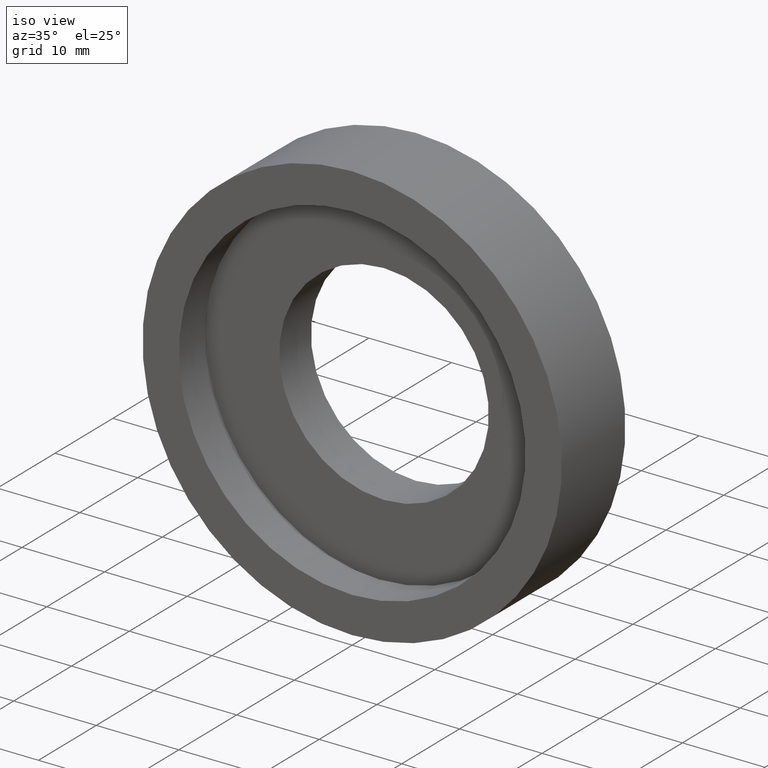
[diagram: clean part render]
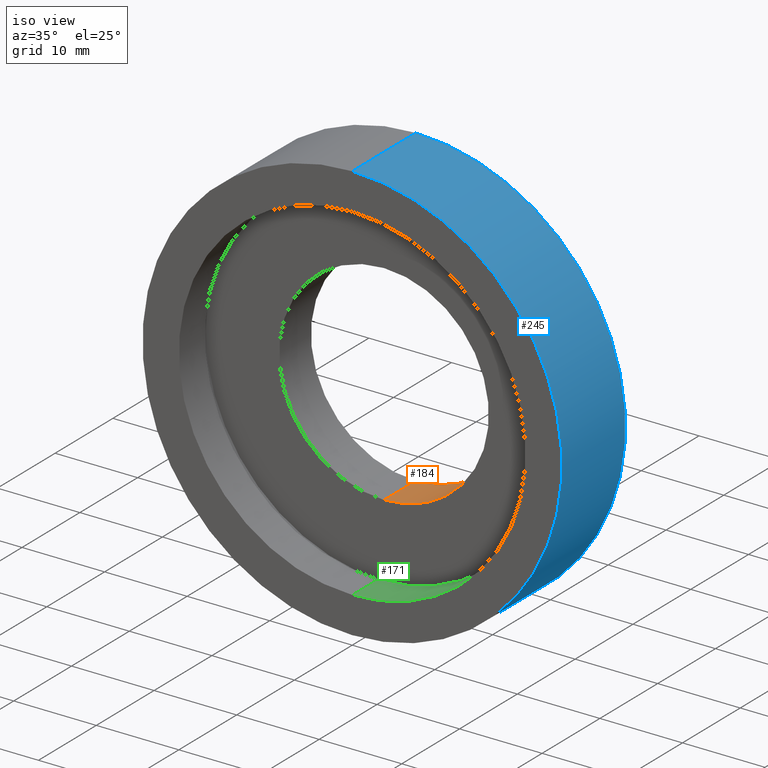
[diagram: same view with three faces highlighted in distinct colors, each labeled with its STEP entity id]
A machine part, iso view with three faces highlighted in distinct colors.
Their STEP definitions:

[orange] entity #184 — the highlighted cylindrical surface (partial cylindrical patch) has radius 12.7 mm, axis along (-0, -1, -0).
#6 = LINE ( 'NONE', #234, #233 ) ;
#9 = DIRECTION ( 'NONE',  ( -0.000000000000000000, -1.000000000000000000, -0.000000000000000000 ) ) ;
#12 = CARTESIAN_POINT ( 'NONE',  ( 1.555301434917138433E-15, 10.99999999999999822, 12.69999999999999929 ) ) ;
#18 = CARTESIAN_POINT ( 'NONE',  ( 0.000000000000000000, 10.99999999999999822, -12.69999999999999929 ) ) ;
#63 = AXIS2_PLACEMENT_3D ( 'NONE', #385, #322, #262 ) ;
#87 = CARTESIAN_POINT ( 'NONE',  ( 0.000000000000000000, 5.499999999999997335, 0.000000000000000000 ) ) ;
#100 = ORIENTED_EDGE ( 'NONE', *, *, #216, .F. ) ;
#104 = DIRECTION ( 'NONE',  ( -0.000000000000000000, -1.000000000000000000, -0.000000000000000000 ) ) ;
#108 = CYLINDRICAL_SURFACE ( 'NONE', #361, 12.69999999999999929 ) ;
#111 = VECTOR ( 'NONE', #104, 1000.000000000000000 ) ;
#112 = CARTESIAN_POINT ( 'NONE',  ( 1.555301434917138433E-15, 0.000000000000000000, 12.69999999999999929 ) ) ;
#143 = FACE_OUTER_BOUND ( 'NONE', #372, .T. ) ;
#155 = VERTEX_POINT ( 'NONE', #352 ) ;
#184 = ADVANCED_FACE ( 'NONE', ( #143 ), #108, .F. ) ;
#209 = DIRECTION ( 'NONE',  ( 0.000000000000000000, 0.000000000000000000, -1.000000000000000000 ) ) ;
#211 = DIRECTION ( 'NONE',  ( -0.000000000000000000, -1.000000000000000000, -0.000000000000000000 ) ) ;
#213 = CIRCLE ( 'NONE', #265, 12.69999999999999929 ) ;
#216 = EDGE_CURVE ( 'NONE', #367, #155, #391, .T. ) ;
#228 = DIRECTION ( 'NONE',  ( -0.000000000000000000, -1.000000000000000000, -0.000000000000000000 ) ) ;
#229 = EDGE_CURVE ( 'NONE', #283, #302, #6, .T. ) ;
#233 = VECTOR ( 'NONE', #228, 1000.000000000000000 ) ;
#234 = CARTESIAN_POINT ( 'NONE',  ( 0.000000000000000000, 0.000000000000000000, -12.69999999999999929 ) ) ;
#262 = DIRECTION ( 'NONE',  ( 0.000000000000000000, 0.000000000000000000, -1.000000000000000000 ) ) ;
#263 = DIRECTION ( 'NONE',  ( 0.000000000000000000, 0.000000000000000000, -1.000000000000000000 ) ) ;
#265 = AXIS2_PLACEMENT_3D ( 'NONE', #87, #211, #209 ) ;
#271 = CARTESIAN_POINT ( 'NONE',  ( 0.000000000000000000, 5.499999999999997335, -12.69999999999999929 ) ) ;
#275 = EDGE_CURVE ( 'NONE', #283, #367, #323, .T. ) ;
#277 = ORIENTED_EDGE ( 'NONE', *, *, #390, .T. ) ;
#283 = VERTEX_POINT ( 'NONE', #18 ) ;
#296 = CARTESIAN_POINT ( 'NONE',  ( 0.000000000000000000, 0.000000000000000000, 0.000000000000000000 ) ) ;
#302 = VERTEX_POINT ( 'NONE', #271 ) ;
#319 = ORIENTED_EDGE ( 'NONE', *, *, #229, .T. ) ;
#322 = DIRECTION ( 'NONE',  ( -0.000000000000000000, -1.000000000000000000, -0.000000000000000000 ) ) ;
#323 = CIRCLE ( 'NONE', #63, 12.69999999999999929 ) ;
#338 = ORIENTED_EDGE ( 'NONE', *, *, #275, .F. ) ;
#352 = CARTESIAN_POINT ( 'NONE',  ( 1.555301434917138433E-15, 5.499999999999997335, 12.69999999999999929 ) ) ;
#361 = AXIS2_PLACEMENT_3D ( 'NONE', #296, #9, #263 ) ;
#367 = VERTEX_POINT ( 'NONE', #12 ) ;
#372 = EDGE_LOOP ( 'NONE', ( #100, #338, #319, #277 ) ) ;
#385 = CARTESIAN_POINT ( 'NONE',  ( 0.000000000000000000, 10.99999999999999822, 0.000000000000000000 ) ) ;
#390 = EDGE_CURVE ( 'NONE', #302, #155, #213, .T. ) ;
#391 = LINE ( 'NONE', #112, #111 ) ;

[blue] entity #245 — the highlighted cylindrical surface (partial cylindrical patch) has radius 25.4 mm, axis along (-0, -1, -0).
#3 = EDGE_LOOP ( 'NONE', ( #340, #92, #407, #136 ) ) ;
#7 = CARTESIAN_POINT ( 'NONE',  ( 3.110602869834276865E-15, 0.000000000000000000, 25.39999999999999858 ) ) ;
#8 = EDGE_CURVE ( 'NONE', #88, #152, #375, .T. ) ;
#17 = CIRCLE ( 'NONE', #253, 25.39999999999999503 ) ;
#40 = DIRECTION ( 'NONE',  ( -0.000000000000000000, -1.000000000000000000, -0.000000000000000000 ) ) ;
#44 = CARTESIAN_POINT ( 'NONE',  ( 0.000000000000000000, -5.551145924324170024E-17, 0.000000000000000000 ) ) ;
#58 = CARTESIAN_POINT ( 'NONE',  ( 0.000000000000000000, 10.99999999999999645, 0.000000000000000000 ) ) ;
#66 = VERTEX_POINT ( 'NONE', #161 ) ;
#73 = CARTESIAN_POINT ( 'NONE',  ( 0.000000000000000000, -5.551145924324170024E-17, -25.39999999999999503 ) ) ;
#88 = VERTEX_POINT ( 'NONE', #102 ) ;
#92 = ORIENTED_EDGE ( 'NONE', *, *, #119, .T. ) ;
#97 = AXIS2_PLACEMENT_3D ( 'NONE', #261, #40, #166 ) ;
#102 = CARTESIAN_POINT ( 'NONE',  ( 0.000000000000000000, 10.99999999999999645, -25.39999999999999858 ) ) ;
#106 = DIRECTION ( 'NONE',  ( -0.000000000000000000, -1.000000000000000000, -0.000000000000000000 ) ) ;
#113 = DIRECTION ( 'NONE',  ( -0.000000000000000000, -1.000000000000000000, -0.000000000000000000 ) ) ;
#119 = EDGE_CURVE ( 'NONE', #334, #66, #170, .T. ) ;
#125 = EDGE_CURVE ( 'NONE', #152, #66, #17, .T. ) ;
#136 = ORIENTED_EDGE ( 'NONE', *, *, #8, .F. ) ;
#140 = DIRECTION ( 'NONE',  ( -0.000000000000000000, -1.000000000000000000, -0.000000000000000000 ) ) ;
#152 = VERTEX_POINT ( 'NONE', #73 ) ;
#161 = CARTESIAN_POINT ( 'NONE',  ( 3.110602869834276471E-15, -5.551145924324170024E-17, 25.39999999999999503 ) ) ;
#166 = DIRECTION ( 'NONE',  ( 0.000000000000000000, 0.000000000000000000, -1.000000000000000000 ) ) ;
#170 = LINE ( 'NONE', #7, #200 ) ;
#186 = DIRECTION ( 'NONE',  ( -0.000000000000000000, -1.000000000000000000, -0.000000000000000000 ) ) ;
#200 = VECTOR ( 'NONE', #140, 1000.000000000000000 ) ;
#202 = AXIS2_PLACEMENT_3D ( 'NONE', #58, #113, #240 ) ;
#240 = DIRECTION ( 'NONE',  ( 0.000000000000000000, 0.000000000000000000, -1.000000000000000000 ) ) ;
#245 = ADVANCED_FACE ( 'NONE', ( #295 ), #320, .T. ) ;
#253 = AXIS2_PLACEMENT_3D ( 'NONE', #44, #106, #386 ) ;
#261 = CARTESIAN_POINT ( 'NONE',  ( 0.000000000000000000, 0.000000000000000000, 0.000000000000000000 ) ) ;
#295 = FACE_OUTER_BOUND ( 'NONE', #3, .T. ) ;
#316 = VECTOR ( 'NONE', #186, 1000.000000000000000 ) ;
#317 = EDGE_CURVE ( 'NONE', #88, #334, #369, .T. ) ;
#320 = CYLINDRICAL_SURFACE ( 'NONE', #97, 25.39999999999999858 ) ;
#334 = VERTEX_POINT ( 'NONE', #364 ) ;
#340 = ORIENTED_EDGE ( 'NONE', *, *, #317, .T. ) ;
#364 = CARTESIAN_POINT ( 'NONE',  ( 3.110602869834276865E-15, 10.99999999999999645, 25.39999999999999858 ) ) ;
#369 = CIRCLE ( 'NONE', #202, 25.39999999999999858 ) ;
#375 = LINE ( 'NONE', #406, #316 ) ;
#386 = DIRECTION ( 'NONE',  ( 0.000000000000000000, 0.000000000000000000, -1.000000000000000000 ) ) ;
#406 = CARTESIAN_POINT ( 'NONE',  ( 0.000000000000000000, 0.000000000000000000, -25.39999999999999858 ) ) ;
#407 = ORIENTED_EDGE ( 'NONE', *, *, #125, .F. ) ;

[green] entity #171 — the highlighted cylindrical surface (partial cylindrical patch) has radius 21 mm, axis along (-0, -1, -0).
#11 = DIRECTION ( 'NONE',  ( -0.000000000000000000, -1.000000000000000000, -0.000000000000000000 ) ) ;
#36 = CIRCLE ( 'NONE', #355, 21.00000000000000000 ) ;
#49 = DIRECTION ( 'NONE',  ( -0.000000000000000000, -1.000000000000000000, -0.000000000000000000 ) ) ;
#50 = EDGE_LOOP ( 'NONE', ( #291, #208, #93, #305 ) ) ;
#64 = CARTESIAN_POINT ( 'NONE',  ( 0.000000000000000000, 4.500000000000000888, -21.00000000000000000 ) ) ;
#76 = CIRCLE ( 'NONE', #286, 21.00000000000000000 ) ;
#79 = CARTESIAN_POINT ( 'NONE',  ( 0.000000000000000000, 0.000000000000000000, 0.000000000000000000 ) ) ;
#80 = CYLINDRICAL_SURFACE ( 'NONE', #330, 21.00000000000000000 ) ;
#86 = VERTEX_POINT ( 'NONE', #64 ) ;
#89 = VECTOR ( 'NONE', #49, 1000.000000000000000 ) ;
#93 = ORIENTED_EDGE ( 'NONE', *, *, #403, .T. ) ;
#137 = CARTESIAN_POINT ( 'NONE',  ( 0.000000000000000000, 1.200936128785044448E-14, -21.00000000000000000 ) ) ;
#142 = EDGE_CURVE ( 'NONE', #274, #259, #76, .T. ) ;
#150 = VERTEX_POINT ( 'NONE', #297 ) ;
#165 = EDGE_CURVE ( 'NONE', #150, #259, #353, .T. ) ;
#171 = ADVANCED_FACE ( 'NONE', ( #198 ), #80, .F. ) ;
#172 = DIRECTION ( 'NONE',  ( 0.000000000000000000, 0.000000000000000000, -1.000000000000000000 ) ) ;
#198 = FACE_OUTER_BOUND ( 'NONE', #50, .T. ) ;
#199 = CARTESIAN_POINT ( 'NONE',  ( 2.571758278209441661E-15, 1.200936128785044448E-14, 21.00000000000000000 ) ) ;
#201 = DIRECTION ( 'NONE',  ( -0.000000000000000000, -1.000000000000000000, -0.000000000000000000 ) ) ;
#208 = ORIENTED_EDGE ( 'NONE', *, *, #333, .F. ) ;
#230 = CARTESIAN_POINT ( 'NONE',  ( 0.000000000000000000, 1.200936128785044448E-14, 0.000000000000000000 ) ) ;
#232 = CARTESIAN_POINT ( 'NONE',  ( 2.571758278209441661E-15, 0.000000000000000000, 21.00000000000000000 ) ) ;
#236 = DIRECTION ( 'NONE',  ( -0.000000000000000000, -1.000000000000000000, -0.000000000000000000 ) ) ;
#259 = VERTEX_POINT ( 'NONE', #199 ) ;
#274 = VERTEX_POINT ( 'NONE', #137 ) ;
#286 = AXIS2_PLACEMENT_3D ( 'NONE', #230, #293, #172 ) ;
#291 = ORIENTED_EDGE ( 'NONE', *, *, #165, .F. ) ;
#293 = DIRECTION ( 'NONE',  ( -0.000000000000000000, -1.000000000000000000, -0.000000000000000000 ) ) ;
#297 = CARTESIAN_POINT ( 'NONE',  ( 2.571758278209441661E-15, 4.500000000000000888, 21.00000000000000000 ) ) ;
#305 = ORIENTED_EDGE ( 'NONE', *, *, #142, .T. ) ;
#329 = CARTESIAN_POINT ( 'NONE',  ( 0.000000000000000000, 0.000000000000000000, -21.00000000000000000 ) ) ;
#330 = AXIS2_PLACEMENT_3D ( 'NONE', #79, #201, #356 ) ;
#332 = LINE ( 'NONE', #329, #89 ) ;
#333 = EDGE_CURVE ( 'NONE', #86, #150, #36, .T. ) ;
#353 = LINE ( 'NONE', #232, #388 ) ;
#355 = AXIS2_PLACEMENT_3D ( 'NONE', #392, #236, #366 ) ;
#356 = DIRECTION ( 'NONE',  ( 0.000000000000000000, 0.000000000000000000, -1.000000000000000000 ) ) ;
#366 = DIRECTION ( 'NONE',  ( 0.000000000000000000, 0.000000000000000000, -1.000000000000000000 ) ) ;
#388 = VECTOR ( 'NONE', #11, 1000.000000000000000 ) ;
#392 = CARTESIAN_POINT ( 'NONE',  ( 0.000000000000000000, 4.500000000000000888, 0.000000000000000000 ) ) ;
#403 = EDGE_CURVE ( 'NONE', #86, #274, #332, .T. ) ;